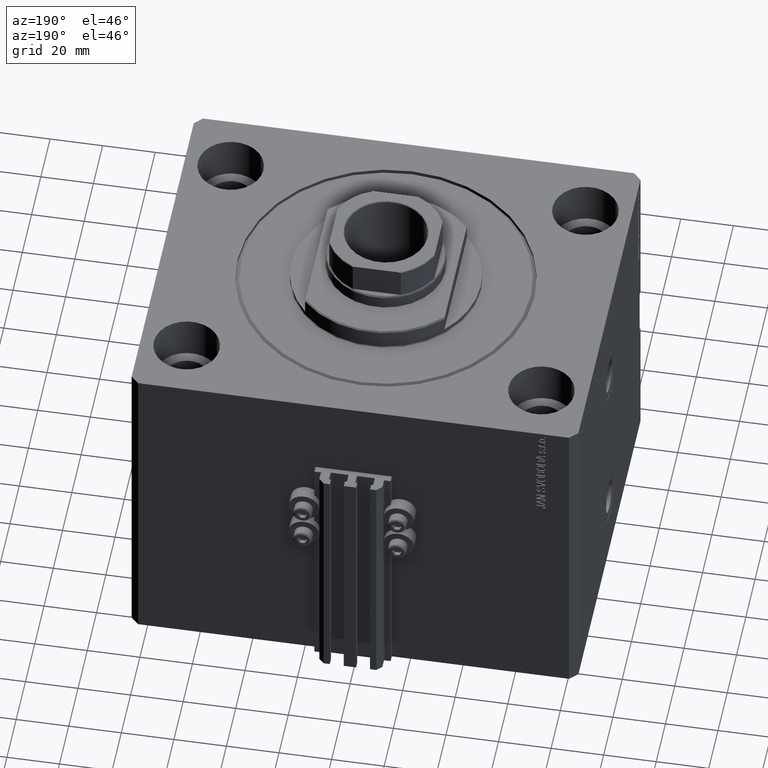
[diagram: clean part render]
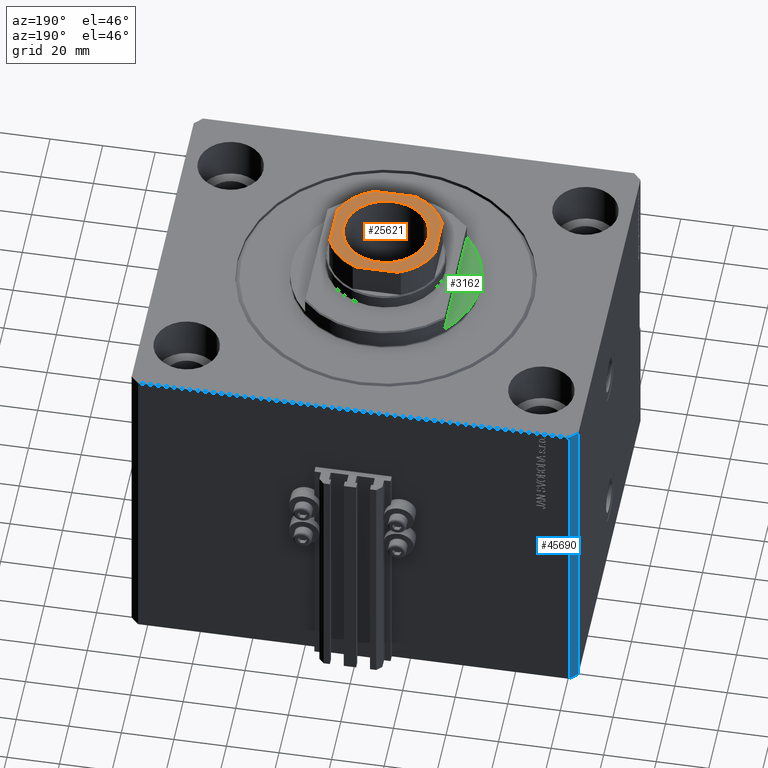
[diagram: same view with three faces highlighted in distinct colors, each labeled with its STEP entity id]
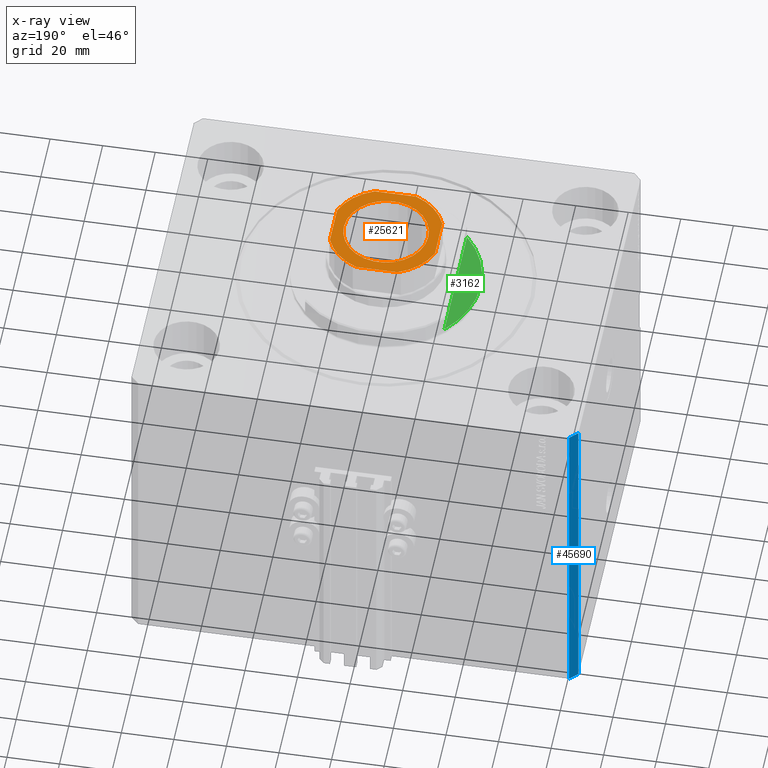
[diagram: x-ray of the same camera — body ghosted, the three highlighted faces saturated]
A machine part, auxiliary view with three faces highlighted in distinct colors.
The next image is the same camera in x-ray (body ghosted, the three faces saturated) — at least one of them is partly hidden behind the body in this view.
Their STEP definitions:

[orange] entity #25621 — the highlighted planar face has unit normal (0, 0, 1).
#437 = CARTESIAN_POINT ( 'NONE',  ( 20.00000000000000000, 7.889866919029748793, 126.1000000000000227 ) ) ;
#829 = VERTEX_POINT ( 'NONE', #12856 ) ;
#1706 = DIRECTION ( 'NONE',  ( 1.000000000000000000, 0.000000000000000000, 0.000000000000000000 ) ) ;
#1910 = AXIS2_PLACEMENT_3D ( 'NONE', #48015, #2943, #14446 ) ;
#2318 = AXIS2_PLACEMENT_3D ( 'NONE', #47072, #25483, #28214 ) ;
#2943 = DIRECTION ( 'NONE',  ( -0.000000000000000000, 0.000000000000000000, 1.000000000000000000 ) ) ;
#3261 = CARTESIAN_POINT ( 'NONE',  ( -20.00000000000000355, 20.00000000000000000, 126.1000000000000227 ) ) ;
#4198 = EDGE_CURVE ( 'NONE', #829, #9076, #12959, .T. ) ;
#5981 = CARTESIAN_POINT ( 'NONE',  ( 7.889866919029743464, 20.00000000000000000, 126.1000000000000227 ) ) ;
#6080 = DIRECTION ( 'NONE',  ( -1.734723475976807094E-16, 1.000000000000000000, -0.000000000000000000 ) ) ;
#7124 = VERTEX_POINT ( 'NONE', #19533 ) ;
#7423 = LINE ( 'NONE', #3261, #41322 ) ;
#8420 = AXIS2_PLACEMENT_3D ( 'NONE', #22458, #41072, #15605 ) ;
#8534 = EDGE_CURVE ( 'NONE', #7124, #42260, #10754, .T. ) ;
#9076 = VERTEX_POINT ( 'NONE', #26756 ) ;
#9135 = EDGE_CURVE ( 'NONE', #24700, #829, #20125, .T. ) ;
#10148 = ORIENTED_EDGE ( 'NONE', *, *, #13487, .T. ) ;
#10573 = VERTEX_POINT ( 'NONE', #43666 ) ;
#10754 = CIRCLE ( 'NONE', #8420, 16.04999999999997939 ) ;
#12856 = CARTESIAN_POINT ( 'NONE',  ( -7.889866919029745240, 20.00000000000000000, 126.1000000000000227 ) ) ;
#12959 = CIRCLE ( 'NONE', #25458, 21.50000000000000000 ) ;
#13487 = EDGE_CURVE ( 'NONE', #10573, #27208, #48481, .T. ) ;
#13527 = ORIENTED_EDGE ( 'NONE', *, *, #9135, .T. ) ;
#13809 = VERTEX_POINT ( 'NONE', #20500 ) ;
#13916 = AXIS2_PLACEMENT_3D ( 'NONE', #27661, #46050, #1706 ) ;
#14210 = FACE_OUTER_BOUND ( 'NONE', #15575, .T. ) ;
#14446 = DIRECTION ( 'NONE',  ( 1.000000000000000000, 0.000000000000000000, 0.000000000000000000 ) ) ;
#14517 = ORIENTED_EDGE ( 'NONE', *, *, #17016, .T. ) ;
#14744 = CIRCLE ( 'NONE', #35876, 21.50000000000000000 ) ;
#15575 = EDGE_LOOP ( 'NONE', ( #36500, #23402, #10148, #25754, #23109, #17610, #13527, #24615 ) ) ;
#15605 = DIRECTION ( 'NONE',  ( 1.000000000000000000, 0.000000000000000000, 0.000000000000000000 ) ) ;
#16017 = CIRCLE ( 'NONE', #26979, 21.50000000000000000 ) ;
#17016 = EDGE_CURVE ( 'NONE', #42260, #7124, #42984, .T. ) ;
#17561 = CARTESIAN_POINT ( 'NONE',  ( 19.99999999999999645, 20.00000000000000000, 126.1000000000000227 ) ) ;
#17610 = ORIENTED_EDGE ( 'NONE', *, *, #44454, .T. ) ;
#17663 = CARTESIAN_POINT ( 'NONE',  ( -20.00000000000000000, -20.00000000000000000, 126.1000000000000227 ) ) ;
#19533 = CARTESIAN_POINT ( 'NONE',  ( -16.04999999999997939, 1.965558112631499443E-15, 126.1000000000000227 ) ) ;
#20125 = LINE ( 'NONE', #42425, #20152 ) ;
#20152 = VECTOR ( 'NONE', #23325, 1000.000000000000000 ) ;
#20174 = VECTOR ( 'NONE', #28951, 1000.000000000000000 ) ;
#20500 = CARTESIAN_POINT ( 'NONE',  ( 20.00000000000000000, -7.889866919029739911, 126.1000000000000227 ) ) ;
#20516 = CARTESIAN_POINT ( 'NONE',  ( -20.00000000000000355, -7.889866919029736358, 126.1000000000000227 ) ) ;
#20576 = CARTESIAN_POINT ( 'NONE',  ( 0.000000000000000000, 0.000000000000000000, 126.1000000000000227 ) ) ;
#21373 = DIRECTION ( 'NONE',  ( 8.673617379884035472E-17, -1.000000000000000000, 0.000000000000000000 ) ) ;
#22458 = CARTESIAN_POINT ( 'NONE',  ( 0.000000000000000000, 0.000000000000000000, 126.1000000000000227 ) ) ;
#23109 = ORIENTED_EDGE ( 'NONE', *, *, #27109, .T. ) ;
#23325 = DIRECTION ( 'NONE',  ( -1.000000000000000000, -0.000000000000000000, -0.000000000000000000 ) ) ;
#23402 = ORIENTED_EDGE ( 'NONE', *, *, #46441, .T. ) ;
#24182 = VERTEX_POINT ( 'NONE', #437 ) ;
#24615 = ORIENTED_EDGE ( 'NONE', *, *, #4198, .T. ) ;
#24700 = VERTEX_POINT ( 'NONE', #5981 ) ;
#24750 = FACE_BOUND ( 'NONE', #36058, .T. ) ;
#25458 = AXIS2_PLACEMENT_3D ( 'NONE', #39783, #42997, #31730 ) ;
#25483 = DIRECTION ( 'NONE',  ( 0.000000000000000000, -0.000000000000000000, -1.000000000000000000 ) ) ;
#25517 = DIRECTION ( 'NONE',  ( -0.000000000000000000, 0.000000000000000000, 1.000000000000000000 ) ) ;
#25621 = ADVANCED_FACE ( 'NONE', ( #24750, #14210 ), #32581, .T. ) ;
#25754 = ORIENTED_EDGE ( 'NONE', *, *, #36754, .T. ) ;
#26756 = CARTESIAN_POINT ( 'NONE',  ( -20.00000000000000355, 7.889866919029741688, 126.1000000000000227 ) ) ;
#26979 = AXIS2_PLACEMENT_3D ( 'NONE', #29440, #25517, #43657 ) ;
#27109 = EDGE_CURVE ( 'NONE', #13809, #24182, #36179, .T. ) ;
#27208 = VERTEX_POINT ( 'NONE', #42051 ) ;
#27661 = CARTESIAN_POINT ( 'NONE',  ( 0.000000000000000000, 0.000000000000000000, 126.1000000000000227 ) ) ;
#28214 = DIRECTION ( 'NONE',  ( 1.000000000000000000, 0.000000000000000000, 0.000000000000000000 ) ) ;
#28951 = DIRECTION ( 'NONE',  ( 1.000000000000000000, 0.000000000000000000, 0.000000000000000000 ) ) ;
#29440 = CARTESIAN_POINT ( 'NONE',  ( 0.000000000000000000, 0.000000000000000000, 126.1000000000000227 ) ) ;
#30300 = CARTESIAN_POINT ( 'NONE',  ( 16.04999999999997939, 0.000000000000000000, 126.1000000000000227 ) ) ;
#30909 = DIRECTION ( 'NONE',  ( 1.000000000000000000, 0.000000000000000000, 0.000000000000000000 ) ) ;
#31730 = DIRECTION ( 'NONE',  ( 1.000000000000000000, 0.000000000000000000, 0.000000000000000000 ) ) ;
#32581 = PLANE ( 'NONE',  #1910 ) ;
#35154 = ORIENTED_EDGE ( 'NONE', *, *, #8534, .T. ) ;
#35524 = DIRECTION ( 'NONE',  ( -0.000000000000000000, 0.000000000000000000, 1.000000000000000000 ) ) ;
#35876 = AXIS2_PLACEMENT_3D ( 'NONE', #20576, #35524, #30909 ) ;
#36058 = EDGE_LOOP ( 'NONE', ( #14517, #35154 ) ) ;
#36179 = LINE ( 'NONE', #17561, #37700 ) ;
#36500 = ORIENTED_EDGE ( 'NONE', *, *, #44904, .T. ) ;
#36754 = EDGE_CURVE ( 'NONE', #27208, #13809, #16017, .T. ) ;
#36972 = VERTEX_POINT ( 'NONE', #20516 ) ;
#37700 = VECTOR ( 'NONE', #6080, 1000.000000000000000 ) ;
#39783 = CARTESIAN_POINT ( 'NONE',  ( 0.000000000000000000, 0.000000000000000000, 126.1000000000000227 ) ) ;
#41072 = DIRECTION ( 'NONE',  ( 0.000000000000000000, -0.000000000000000000, -1.000000000000000000 ) ) ;
#41322 = VECTOR ( 'NONE', #21373, 1000.000000000000000 ) ;
#42051 = CARTESIAN_POINT ( 'NONE',  ( 7.889866919029745240, -20.00000000000000000, 126.1000000000000227 ) ) ;
#42260 = VERTEX_POINT ( 'NONE', #30300 ) ;
#42425 = CARTESIAN_POINT ( 'NONE',  ( -20.00000000000000355, 20.00000000000000000, 126.1000000000000227 ) ) ;
#42876 = CIRCLE ( 'NONE', #13916, 21.50000000000000000 ) ;
#42984 = CIRCLE ( 'NONE', #2318, 16.04999999999997939 ) ;
#42997 = DIRECTION ( 'NONE',  ( -0.000000000000000000, 0.000000000000000000, 1.000000000000000000 ) ) ;
#43657 = DIRECTION ( 'NONE',  ( 1.000000000000000000, 0.000000000000000000, 0.000000000000000000 ) ) ;
#43666 = CARTESIAN_POINT ( 'NONE',  ( -7.889866919029745240, -20.00000000000000000, 126.1000000000000227 ) ) ;
#44454 = EDGE_CURVE ( 'NONE', #24182, #24700, #42876, .T. ) ;
#44904 = EDGE_CURVE ( 'NONE', #9076, #36972, #7423, .T. ) ;
#46050 = DIRECTION ( 'NONE',  ( -0.000000000000000000, 0.000000000000000000, 1.000000000000000000 ) ) ;
#46441 = EDGE_CURVE ( 'NONE', #36972, #10573, #14744, .T. ) ;
#47072 = CARTESIAN_POINT ( 'NONE',  ( 0.000000000000000000, 0.000000000000000000, 126.1000000000000227 ) ) ;
#48015 = CARTESIAN_POINT ( 'NONE',  ( 0.000000000000000000, 0.000000000000000000, 126.1000000000000227 ) ) ;
#48481 = LINE ( 'NONE', #17663, #20174 ) ;

[blue] entity #45690 — the highlighted planar face has unit normal (-0.7071, 0.7071, 0).
#344 = EDGE_CURVE ( 'NONE', #31287, #25309, #41583, .T. ) ;
#1567 = LINE ( 'NONE', #35100, #43541 ) ;
#3269 = ORIENTED_EDGE ( 'NONE', *, *, #37618, .F. ) ;
#4557 = EDGE_CURVE ( 'NONE', #24377, #19499, #6043, .T. ) ;
#6043 = LINE ( 'NONE', #39821, #29420 ) ;
#7301 = CARTESIAN_POINT ( 'NONE',  ( -82.00000000000000000, 70.00000000000000000, 0.000000000000000000 ) ) ;
#8033 = DIRECTION ( 'NONE',  ( -0.7071067811865474617, -0.7071067811865474617, 0.000000000000000000 ) ) ;
#11475 = CARTESIAN_POINT ( 'NONE',  ( -85.00000000000000000, 67.00000000000000000, -130.0000000000000000 ) ) ;
#11489 = LINE ( 'NONE', #37690, #14472 ) ;
#14472 = VECTOR ( 'NONE', #45787, 1000.000000000000000 ) ;
#16346 = FACE_OUTER_BOUND ( 'NONE', #21893, .T. ) ;
#18173 = ORIENTED_EDGE ( 'NONE', *, *, #344, .F. ) ;
#19499 = VERTEX_POINT ( 'NONE', #11475 ) ;
#21753 = CARTESIAN_POINT ( 'NONE',  ( -85.00000000000000000, 67.00000000000000000, 0.000000000000000000 ) ) ;
#21893 = EDGE_LOOP ( 'NONE', ( #18173, #3269, #30207, #22751 ) ) ;
#22751 = ORIENTED_EDGE ( 'NONE', *, *, #40346, .T. ) ;
#23467 = DIRECTION ( 'NONE',  ( -0.7071067811865474617, -0.7071067811865474617, 0.000000000000000000 ) ) ;
#24377 = VERTEX_POINT ( 'NONE', #45996 ) ;
#25309 = VERTEX_POINT ( 'NONE', #21753 ) ;
#27863 = DIRECTION ( 'NONE',  ( -0.7071067811865475727, 0.7071067811865475727, 0.000000000000000000 ) ) ;
#29420 = VECTOR ( 'NONE', #39332, 1000.000000000000114 ) ;
#30207 = ORIENTED_EDGE ( 'NONE', *, *, #4557, .T. ) ;
#30839 = VECTOR ( 'NONE', #8033, 1000.000000000000114 ) ;
#31287 = VERTEX_POINT ( 'NONE', #40983 ) ;
#34722 = CARTESIAN_POINT ( 'NONE',  ( -82.00000000000000000, 70.00000000000000000, -130.0000000000000000 ) ) ;
#35100 = CARTESIAN_POINT ( 'NONE',  ( -85.00000000000000000, 67.00000000000000000, -130.0000000000000000 ) ) ;
#37618 = EDGE_CURVE ( 'NONE', #24377, #31287, #11489, .T. ) ;
#37690 = CARTESIAN_POINT ( 'NONE',  ( -82.00000000000000000, 70.00000000000000000, -130.0000000000000000 ) ) ;
#39332 = DIRECTION ( 'NONE',  ( -0.7071067811865474617, -0.7071067811865474617, 0.000000000000000000 ) ) ;
#39821 = CARTESIAN_POINT ( 'NONE',  ( -82.00000000000000000, 70.00000000000000000, -130.0000000000000000 ) ) ;
#40346 = EDGE_CURVE ( 'NONE', #19499, #25309, #1567, .T. ) ;
#40983 = CARTESIAN_POINT ( 'NONE',  ( -82.00000000000000000, 70.00000000000000000, 0.000000000000000000 ) ) ;
#41583 = LINE ( 'NONE', #7301, #30839 ) ;
#42118 = AXIS2_PLACEMENT_3D ( 'NONE', #34722, #27863, #23467 ) ;
#42559 = PLANE ( 'NONE',  #42118 ) ;
#43541 = VECTOR ( 'NONE', #45907, 1000.000000000000000 ) ;
#45690 = ADVANCED_FACE ( 'NONE', ( #16346 ), #42559, .T. ) ;
#45787 = DIRECTION ( 'NONE',  ( 0.000000000000000000, 0.000000000000000000, 1.000000000000000000 ) ) ;
#45907 = DIRECTION ( 'NONE',  ( 0.000000000000000000, 0.000000000000000000, 1.000000000000000000 ) ) ;
#45996 = CARTESIAN_POINT ( 'NONE',  ( -82.00000000000000000, 70.00000000000000000, -130.0000000000000000 ) ) ;

[green] entity #3162 — the highlighted planar face has unit normal (0, 0, 1).
#570 = CARTESIAN_POINT ( 'NONE',  ( 26.50000000000000000, 24.36698586202240691, -2.000000000000000000 ) ) ;
#2717 = VERTEX_POINT ( 'NONE', #10753 ) ;
#2734 = CARTESIAN_POINT ( 'NONE',  ( 0.000000000000000000, 0.000000000000000000, -2.000000000000000000 ) ) ;
#3162 = ADVANCED_FACE ( 'NONE', ( #47812 ), #6415, .T. ) ;
#5098 = AXIS2_PLACEMENT_3D ( 'NONE', #2734, #44359, #29426 ) ;
#6415 = PLANE ( 'NONE',  #5098 ) ;
#6866 = CIRCLE ( 'NONE', #11542, 36.00000000000000000 ) ;
#9173 = EDGE_CURVE ( 'NONE', #2717, #42810, #19385, .T. ) ;
#10753 = CARTESIAN_POINT ( 'NONE',  ( 36.00000000000000000, 0.000000000000000000, -2.000000000000000000 ) ) ;
#10780 = EDGE_CURVE ( 'NONE', #17894, #42810, #20586, .T. ) ;
#10782 = AXIS2_PLACEMENT_3D ( 'NONE', #45622, #24044, #38974 ) ;
#11542 = AXIS2_PLACEMENT_3D ( 'NONE', #33181, #40528, #44211 ) ;
#13528 = ORIENTED_EDGE ( 'NONE', *, *, #42423, .T. ) ;
#14721 = VECTOR ( 'NONE', #35778, 1000.000000000000000 ) ;
#15275 = ORIENTED_EDGE ( 'NONE', *, *, #10780, .F. ) ;
#17406 = ORIENTED_EDGE ( 'NONE', *, *, #9173, .T. ) ;
#17894 = VERTEX_POINT ( 'NONE', #570 ) ;
#19385 = CIRCLE ( 'NONE', #10782, 36.00000000000000000 ) ;
#20586 = LINE ( 'NONE', #24753, #14721 ) ;
#24044 = DIRECTION ( 'NONE',  ( 0.000000000000000000, 0.000000000000000000, -1.000000000000000000 ) ) ;
#24221 = CARTESIAN_POINT ( 'NONE',  ( 26.50000000000000000, -24.36698586202240691, -2.000000000000000000 ) ) ;
#24753 = CARTESIAN_POINT ( 'NONE',  ( 26.50000000000000000, -36.36963018783666257, -2.000000000000000000 ) ) ;
#29426 = DIRECTION ( 'NONE',  ( 1.000000000000000000, 0.000000000000000000, 0.000000000000000000 ) ) ;
#33181 = CARTESIAN_POINT ( 'NONE',  ( 0.000000000000000000, 0.000000000000000000, -2.000000000000000000 ) ) ;
#35778 = DIRECTION ( 'NONE',  ( 0.000000000000000000, -1.000000000000000000, -0.000000000000000000 ) ) ;
#38974 = DIRECTION ( 'NONE',  ( -1.000000000000000000, 0.000000000000000000, 0.000000000000000000 ) ) ;
#40528 = DIRECTION ( 'NONE',  ( 0.000000000000000000, 0.000000000000000000, -1.000000000000000000 ) ) ;
#42423 = EDGE_CURVE ( 'NONE', #17894, #2717, #6866, .T. ) ;
#42810 = VERTEX_POINT ( 'NONE', #24221 ) ;
#44211 = DIRECTION ( 'NONE',  ( -1.000000000000000000, 0.000000000000000000, 0.000000000000000000 ) ) ;
#44359 = DIRECTION ( 'NONE',  ( 0.000000000000000000, 0.000000000000000000, -1.000000000000000000 ) ) ;
#45622 = CARTESIAN_POINT ( 'NONE',  ( 0.000000000000000000, 0.000000000000000000, -2.000000000000000000 ) ) ;
#46485 = EDGE_LOOP ( 'NONE', ( #13528, #17406, #15275 ) ) ;
#47812 = FACE_OUTER_BOUND ( 'NONE', #46485, .T. ) ;